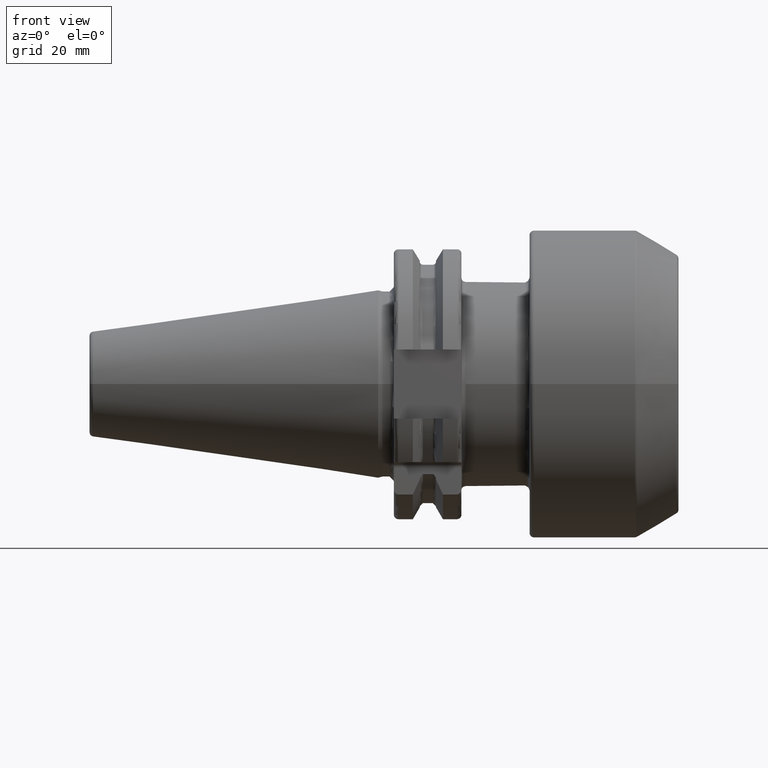
[diagram: clean part render]
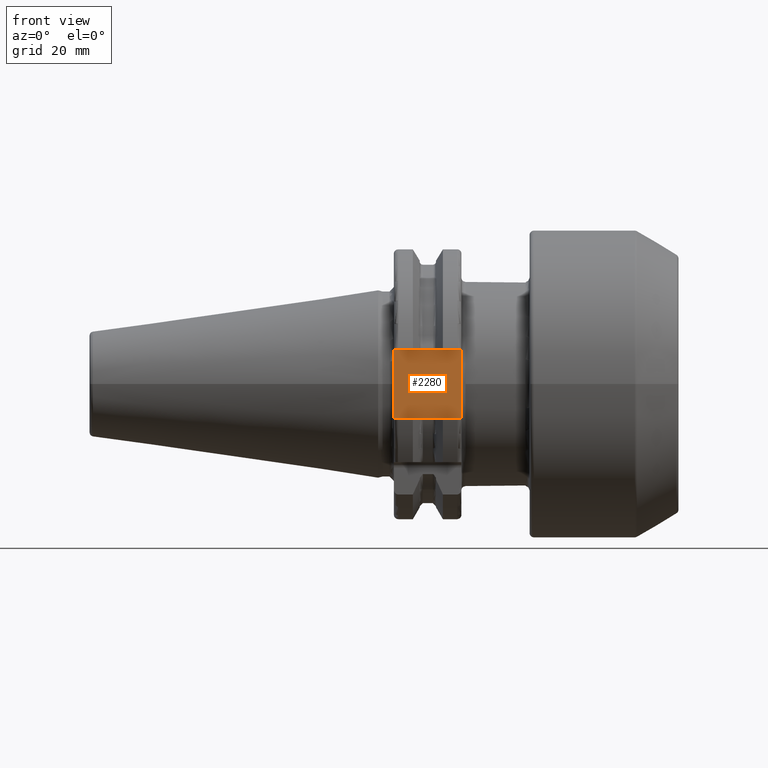
[diagram: same view with one face highlighted and labeled with its STEP entity id]
A machine part, front view. The second image highlights one B-rep face of the part: STEP entity #2280.
In plain terms, the highlighted planar face has unit normal (0, 1, 0).
Its self-contained STEP definition (entity closure, byte-faithful):
#346=DIRECTION('',(0.E0,8.334156118678E-7,9.999999999997E-1));
#347=VECTOR('',#346,5.364895567851E0);
#348=CARTESIAN_POINT('',(1.905E1,-2.485E1,-8.1E0));
#349=LINE('',#348,#347);
#371=DIRECTION('',(0.E0,-2.148215350912E-6,9.999999999977E-1));
#372=VECTOR('',#371,5.367556919513E0);
#373=CARTESIAN_POINT('',(1.905E1,-2.484998846933E1,2.732443080500E0));
#374=LINE('',#373,#372);
#388=DIRECTION('',(-1.E0,0.E0,0.E0));
#389=VECTOR('',#388,1.585E1);
#390=CARTESIAN_POINT('',(1.905E1,-2.485E1,-8.1E0));
#391=LINE('',#390,#389);
#402=CARTESIAN_POINT('',(1.905E1,-2.484999552881E1,-2.735104432150E0));
#403=CARTESIAN_POINT('',(1.905E1,-2.484999552881E1,-2.126138205842E0));
#404=CARTESIAN_POINT('',(1.906190710250E1,-2.485000054913E1,
-9.085788909068E-1));
#405=CARTESIAN_POINT('',(1.906190708971E1,-2.485000478482E1,9.094672714061E-1));
#406=CARTESIAN_POINT('',(1.905E1,-2.484998846933E1,2.123477395618E0));
#407=CARTESIAN_POINT('',(1.905E1,-2.484998846933E1,2.732443080500E0));
#628=DIRECTION('',(-1.E0,0.E0,0.E0));
#629=VECTOR('',#628,1.585E1);
#630=CARTESIAN_POINT('',(1.905E1,-2.485E1,8.1E0));
#631=LINE('',#630,#629);
#697=DIRECTION('',(0.E0,0.E0,1.E0));
#698=VECTOR('',#697,1.62E1);
#699=CARTESIAN_POINT('',(3.2E0,-2.485E1,-8.1E0));
#700=LINE('',#699,#698);
#1692=CARTESIAN_POINT('',(1.905E1,-2.485E1,-8.1E0));
#1694=VERTEX_POINT('',#1692);
#1696=CARTESIAN_POINT('',(1.905E1,-2.485E1,8.1E0));
#1698=VERTEX_POINT('',#1696);
#1720=CARTESIAN_POINT('',(3.2E0,-2.485E1,-8.1E0));
#1722=VERTEX_POINT('',#1720);
#1723=CARTESIAN_POINT('',(3.2E0,-2.485E1,8.1E0));
#1724=VERTEX_POINT('',#1723);
#1807=CARTESIAN_POINT('',(1.905E1,-2.484999552881E1,-2.735104432150E0));
#1808=VERTEX_POINT('',#1807);
#1809=CARTESIAN_POINT('',(1.905E1,-2.484998846933E1,2.732443080500E0));
#1810=VERTEX_POINT('',#1809);
#2263=CARTESIAN_POINT('',(1.905E1,-2.485E1,-8.1E0));
#2264=DIRECTION('',(0.E0,1.E0,0.E0));
#2265=DIRECTION('',(0.E0,0.E0,1.E0));
#2266=AXIS2_PLACEMENT_3D('',#2263,#2264,#2265);
#2267=PLANE('',#2266);
#2268=ORIENTED_EDGE('',*,*,#2251,.F.);
#2270=ORIENTED_EDGE('',*,*,#2269,.F.);
#2271=ORIENTED_EDGE('',*,*,#2226,.F.);
#2273=ORIENTED_EDGE('',*,*,#2272,.T.);
#2275=ORIENTED_EDGE('',*,*,#2274,.T.);
#2277=ORIENTED_EDGE('',*,*,#2276,.F.);
#2278=EDGE_LOOP('',(#2268,#2270,#2271,#2273,#2275,#2277));
#2279=FACE_OUTER_BOUND('',#2278,.F.);
#2280=ADVANCED_FACE('',(#2279),#2267,.F.);
#408=B_SPLINE_CURVE_WITH_KNOTS('',3,(#402,#403,#404,#405,#406,#407),
.UNSPECIFIED.,.F.,.F.,(4,1,1,4),(0.E0,3.333333333333E-1,6.666666666667E-1,1.E0),
.UNSPECIFIED.);
#2226=EDGE_CURVE('',#1694,#1808,#349,.T.);
#2251=EDGE_CURVE('',#1810,#1698,#374,.T.);
#2269=EDGE_CURVE('',#1808,#1810,#408,.T.);
#2272=EDGE_CURVE('',#1694,#1722,#391,.T.);
#2274=EDGE_CURVE('',#1722,#1724,#700,.T.);
#2276=EDGE_CURVE('',#1698,#1724,#631,.T.);